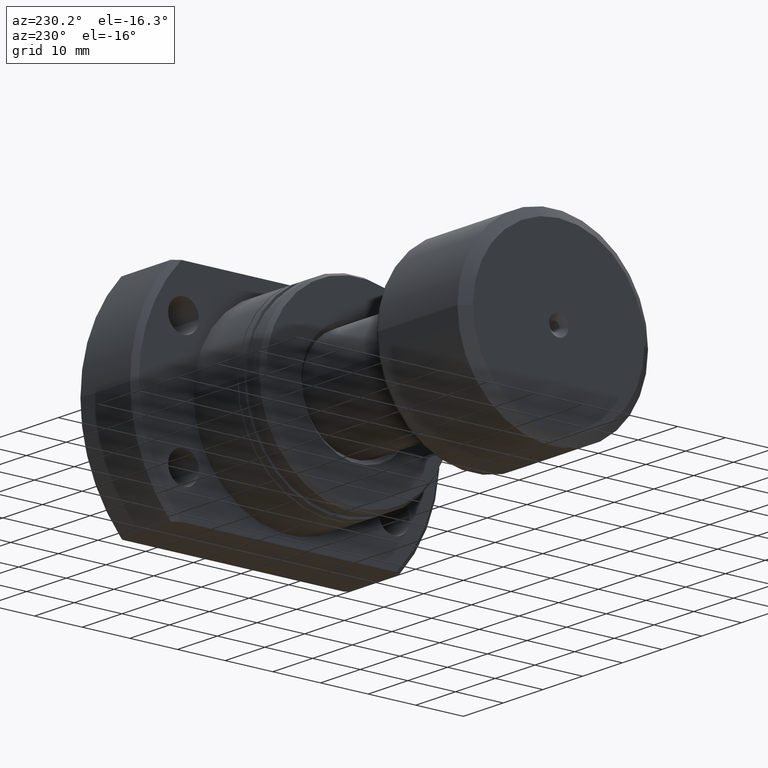
[diagram: clean part render]
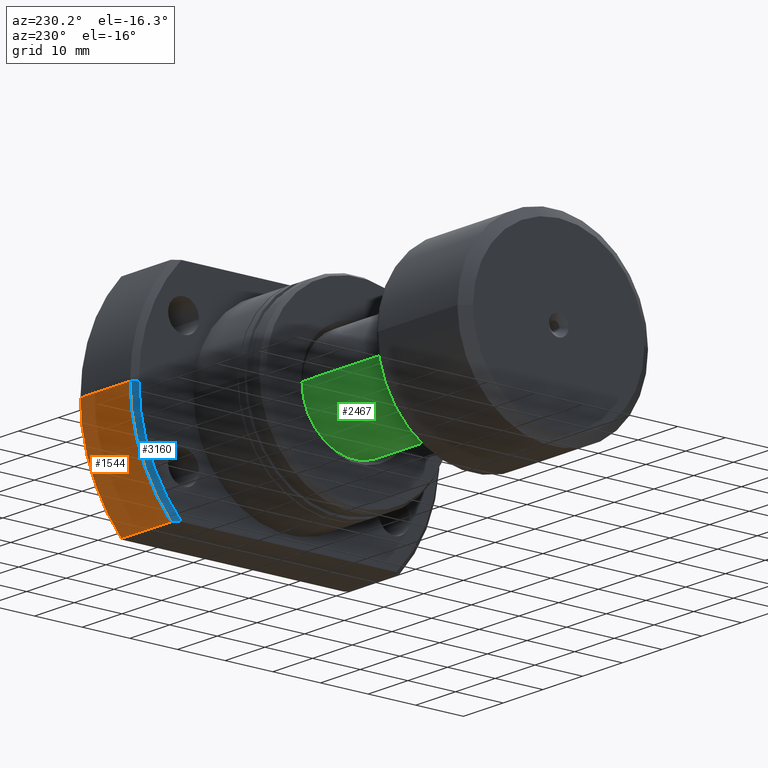
[diagram: same view with three faces highlighted in distinct colors, each labeled with its STEP entity id]
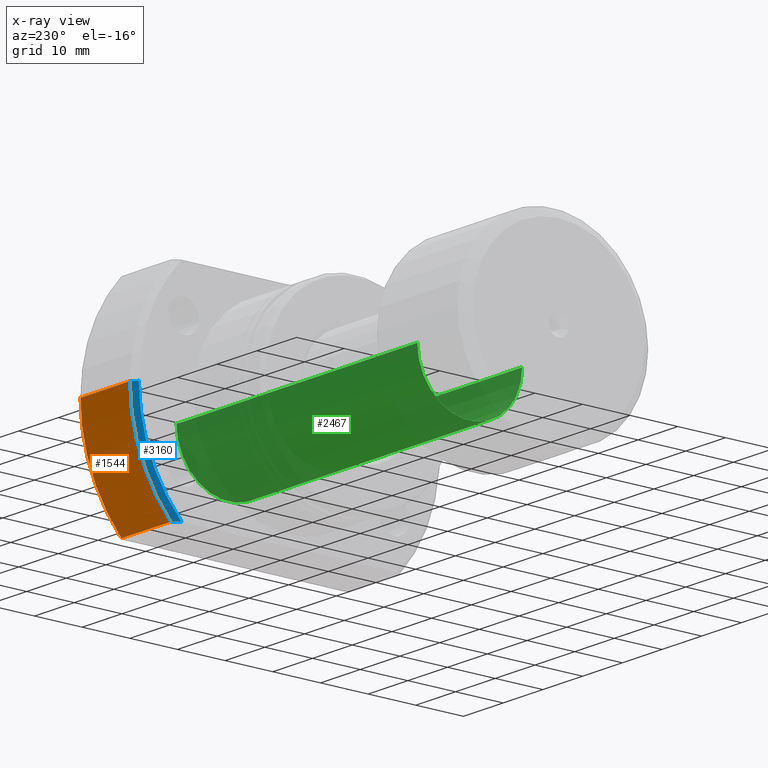
[diagram: x-ray of the same camera — body ghosted, the three highlighted faces saturated]
A machine part, auxiliary view with three faces highlighted in distinct colors.
The next image is the same camera in x-ray (body ghosted, the three faces saturated) — at least one of them is partly hidden behind the body in this view.
Their STEP definitions:

[orange] entity #1544 — the highlighted cylindrical surface (partial cylindrical patch) has radius 32.5 mm, axis along (1, 0, 0).
#307 = ORIENTED_EDGE ( 'NONE', *, *, #346, .T. ) ;
#346 = EDGE_CURVE ( 'NONE', #1538, #1849, #2938, .T. ) ;
#366 = ORIENTED_EDGE ( 'NONE', *, *, #1125, .T. ) ;
#420 = VERTEX_POINT ( 'NONE', #670 ) ;
#466 = CARTESIAN_POINT ( 'NONE',  ( 31.00000000000008171, 32.49999999999990763, 0.000000000000000000 ) ) ;
#501 = DIRECTION ( 'NONE',  ( 1.000000000000000000, -2.886466111666351885E-14, -0.000000000000000000 ) ) ;
#508 = DIRECTION ( 'NONE',  ( 1.000000000000000000, 2.721437331438560389E-17, -0.000000000000000000 ) ) ;
#509 = CARTESIAN_POINT ( 'NONE',  ( 18.49999999999998934, 23.92174742781163133, -21.99999999999998934 ) ) ;
#565 = DIRECTION ( 'NONE',  ( 0.000000000000000000, 1.000000000000000000, 0.000000000000000000 ) ) ;
#664 = EDGE_LOOP ( 'NONE', ( #366, #307, #2028, #3062 ) ) ;
#670 = CARTESIAN_POINT ( 'NONE',  ( 31.00000000000007461, 23.92174742781126895, -21.99999999999998934 ) ) ;
#696 = VECTOR ( 'NONE', #508, 1000.000000000000000 ) ;
#705 = CIRCLE ( 'NONE', #1426, 32.49999999999990763 ) ;
#781 = CYLINDRICAL_SURFACE ( 'NONE', #1046, 32.49999999999990763 ) ;
#956 = DIRECTION ( 'NONE',  ( 0.000000000000000000, 1.000000000000000000, 0.000000000000000000 ) ) ;
#1038 = VERTEX_POINT ( 'NONE', #509 ) ;
#1046 = AXIS2_PLACEMENT_3D ( 'NONE', #2298, #2271, #565 ) ;
#1125 = EDGE_CURVE ( 'NONE', #1038, #1538, #2928, .T. ) ;
#1212 = CARTESIAN_POINT ( 'NONE',  ( 31.50000000000000000, 32.49999999999990763, 0.000000000000000000 ) ) ;
#1255 = CARTESIAN_POINT ( 'NONE',  ( 18.49999999999998934, 5.034659063161333869E-16, 0.000000000000000000 ) ) ;
#1272 = DIRECTION ( 'NONE',  ( 0.000000000000000000, 1.000000000000000000, 0.000000000000000000 ) ) ;
#1319 = EDGE_CURVE ( 'NONE', #1038, #420, #1682, .T. ) ;
#1426 = AXIS2_PLACEMENT_3D ( 'NONE', #1895, #1443, #956 ) ;
#1443 = DIRECTION ( 'NONE',  ( 1.000000000000000000, 2.721437331438560389E-17, -0.000000000000000000 ) ) ;
#1538 = VERTEX_POINT ( 'NONE', #1790 ) ;
#1544 = ADVANCED_FACE ( 'NONE', ( #2493 ), #781, .T. ) ;
#1574 = AXIS2_PLACEMENT_3D ( 'NONE', #1255, #2262, #1272 ) ;
#1682 = LINE ( 'NONE', #2660, #2300 ) ;
#1790 = CARTESIAN_POINT ( 'NONE',  ( 18.49999999999998934, 32.49999999999990763, 0.000000000000000000 ) ) ;
#1849 = VERTEX_POINT ( 'NONE', #466 ) ;
#1895 = CARTESIAN_POINT ( 'NONE',  ( 31.00000000000008171, 8.436455727459560039E-16, 0.000000000000000000 ) ) ;
#2028 = ORIENTED_EDGE ( 'NONE', *, *, #2916, .F. ) ;
#2262 = DIRECTION ( 'NONE',  ( 1.000000000000000000, 2.721437331438560389E-17, -0.000000000000000000 ) ) ;
#2271 = DIRECTION ( 'NONE',  ( 1.000000000000000000, 2.721437331438560389E-17, -0.000000000000000000 ) ) ;
#2298 = CARTESIAN_POINT ( 'NONE',  ( 31.50000000000000000, 8.572527594031465301E-16, 0.000000000000000000 ) ) ;
#2300 = VECTOR ( 'NONE', #501, 1000.000000000000000 ) ;
#2493 = FACE_OUTER_BOUND ( 'NONE', #664, .T. ) ;
#2660 = CARTESIAN_POINT ( 'NONE',  ( -2.498001805406602216E-13, 23.92174742781216423, -21.99999999999998934 ) ) ;
#2916 = EDGE_CURVE ( 'NONE', #420, #1849, #705, .T. ) ;
#2928 = CIRCLE ( 'NONE', #1574, 32.49999999999990763 ) ;
#2938 = LINE ( 'NONE', #1212, #696 ) ;
#3062 = ORIENTED_EDGE ( 'NONE', *, *, #1319, .F. ) ;

[blue] entity #3160 — the highlighted conical surface has half-angle 45 deg.
#123 = DIRECTION ( 'NONE',  ( 0.000000000000000000, 1.000000000000000000, 0.000000000000000000 ) ) ;
#127 = LINE ( 'NONE', #1613, #2095 ) ;
#137 = ORIENTED_EDGE ( 'NONE', *, *, #3213, .T. ) ;
#359 = EDGE_LOOP ( 'NONE', ( #137, #2993, #1240, #2164 ) ) ;
#377 = DIRECTION ( 'NONE',  ( 1.000000000000000000, 2.721437331438560389E-17, -0.000000000000000000 ) ) ;
#509 = CARTESIAN_POINT ( 'NONE',  ( 18.49999999999998934, 23.92174742781163133, -21.99999999999998934 ) ) ;
#541 = CARTESIAN_POINT ( 'NONE',  ( 17.50000000000000355, 31.49999999999993250, 0.000000000000000000 ) ) ;
#627 = CARTESIAN_POINT ( 'NONE',  ( 18.49999999999998934, 23.92174742781163133, -21.99999999999998934 ) ) ;
#659 = CARTESIAN_POINT ( 'NONE',  ( 17.50000000000000355, 4.762515330017481928E-16, 0.000000000000000000 ) ) ;
#754 = AXIS2_PLACEMENT_3D ( 'NONE', #1415, #377, #123 ) ;
#855 = CARTESIAN_POINT ( 'NONE',  ( 18.16368991444090497, 23.46483775540317041, -22.00000000000000355 ) ) ;
#874 = B_SPLINE_CURVE_WITH_KNOTS ( 'NONE', 3,
 ( #627, #855, #1890, #1131 ),
 .UNSPECIFIED., .F., .F.,
 ( 4, 4 ),
 ( 0.03779752499755586331, 0.03950166028446448763 ),
 .UNSPECIFIED. ) ;
#1038 = VERTEX_POINT ( 'NONE', #509 ) ;
#1125 = EDGE_CURVE ( 'NONE', #1038, #1538, #2928, .T. ) ;
#1131 = CARTESIAN_POINT ( 'NONE',  ( 17.50000000000000355, 22.54440063519089676, -22.00000000000000355 ) ) ;
#1137 = VERTEX_POINT ( 'NONE', #2227 ) ;
#1240 = ORIENTED_EDGE ( 'NONE', *, *, #1125, .F. ) ;
#1248 = EDGE_CURVE ( 'NONE', #1038, #1137, #874, .T. ) ;
#1255 = CARTESIAN_POINT ( 'NONE',  ( 18.49999999999998934, 5.034659063161333869E-16, 0.000000000000000000 ) ) ;
#1272 = DIRECTION ( 'NONE',  ( 0.000000000000000000, 1.000000000000000000, 0.000000000000000000 ) ) ;
#1274 = EDGE_CURVE ( 'NONE', #2048, #1538, #127, .T. ) ;
#1395 = DIRECTION ( 'NONE',  ( 0.000000000000000000, 1.000000000000000000, 0.000000000000000000 ) ) ;
#1415 = CARTESIAN_POINT ( 'NONE',  ( 17.50000000000000355, 4.762515330017481928E-16, 0.000000000000000000 ) ) ;
#1538 = VERTEX_POINT ( 'NONE', #1790 ) ;
#1574 = AXIS2_PLACEMENT_3D ( 'NONE', #1255, #2262, #1272 ) ;
#1613 = CARTESIAN_POINT ( 'NONE',  ( 17.50000000000000355, 31.49999999999993250, 0.000000000000000000 ) ) ;
#1643 = DIRECTION ( 'NONE',  ( 1.000000000000000000, 2.721437331438560389E-17, -0.000000000000000000 ) ) ;
#1731 = CONICAL_SURFACE ( 'NONE', #2520, 31.49999999999993250, 0.7853981633974466137 ) ;
#1790 = CARTESIAN_POINT ( 'NONE',  ( 18.49999999999998934, 32.49999999999990763, 0.000000000000000000 ) ) ;
#1890 = CARTESIAN_POINT ( 'NONE',  ( 17.83023180395318263, 23.00581462409452982, -22.00000000000000355 ) ) ;
#1891 = CIRCLE ( 'NONE', #754, 31.49999999999993250 ) ;
#2048 = VERTEX_POINT ( 'NONE', #541 ) ;
#2095 = VECTOR ( 'NONE', #2835, 1000.000000000000000 ) ;
#2164 = ORIENTED_EDGE ( 'NONE', *, *, #1248, .T. ) ;
#2227 = CARTESIAN_POINT ( 'NONE',  ( 17.50000000000000355, 22.54440063519089676, -22.00000000000000355 ) ) ;
#2262 = DIRECTION ( 'NONE',  ( 1.000000000000000000, 2.721437331438560389E-17, -0.000000000000000000 ) ) ;
#2403 = FACE_OUTER_BOUND ( 'NONE', #359, .T. ) ;
#2520 = AXIS2_PLACEMENT_3D ( 'NONE', #659, #1643, #1395 ) ;
#2835 = DIRECTION ( 'NONE',  ( 0.7071067811865487940, 0.7071067811865463515, 0.000000000000000000 ) ) ;
#2928 = CIRCLE ( 'NONE', #1574, 32.49999999999990763 ) ;
#2993 = ORIENTED_EDGE ( 'NONE', *, *, #1274, .T. ) ;
#3160 = ADVANCED_FACE ( 'NONE', ( #2403 ), #1731, .T. ) ;
#3213 = EDGE_CURVE ( 'NONE', #1137, #2048, #1891, .T. ) ;

[green] entity #2467 — the highlighted cylindrical surface (partial cylindrical patch) has radius 11 mm, axis along (-1, -0, -0).
#17 = DIRECTION ( 'NONE',  ( -1.000000000000000000, -1.069542322069065801E-17, -0.000000000000000000 ) ) ;
#18 = VECTOR ( 'NONE', #2170, 1000.000000000000000 ) ;
#42 = CARTESIAN_POINT ( 'NONE',  ( 83.06675751232377536, -11.00000000000018829, 0.000000000000000000 ) ) ;
#168 = EDGE_CURVE ( 'NONE', #1580, #992, #3205, .T. ) ;
#195 = CARTESIAN_POINT ( 'NONE',  ( 1.176496554275982688E-16, -11.00000000000009415, 0.000000000000000000 ) ) ;
#226 = AXIS2_PLACEMENT_3D ( 'NONE', #1922, #691, #1663 ) ;
#278 = CARTESIAN_POINT ( 'NONE',  ( -1.176496554275982688E-16, 11.00000000000009415, 1.347111479062100238E-15 ) ) ;
#362 = CARTESIAN_POINT ( 'NONE',  ( 83.06675751232377536, 8.884341271647877269E-16, 0.000000000000000000 ) ) ;
#553 = EDGE_CURVE ( 'NONE', #824, #1196, #979, .T. ) ;
#570 = EDGE_LOOP ( 'NONE', ( #2968, #1609, #2399, #1284 ) ) ;
#576 = CARTESIAN_POINT ( 'NONE',  ( 0.000000000000000000, 0.000000000000000000, 0.000000000000000000 ) ) ;
#691 = DIRECTION ( 'NONE',  ( -1.000000000000000000, -1.069542322069065801E-17, -0.000000000000000000 ) ) ;
#814 = CARTESIAN_POINT ( 'NONE',  ( 83.06675751232377536, 11.00000000000019185, 1.347111479062111873E-15 ) ) ;
#824 = VERTEX_POINT ( 'NONE', #814 ) ;
#886 = CARTESIAN_POINT ( 'NONE',  ( 22.39999999999999858, 11.00000000000000000, 1.347111479062094124E-15 ) ) ;
#979 = LINE ( 'NONE', #278, #2820 ) ;
#992 = VERTEX_POINT ( 'NONE', #1618 ) ;
#999 = CIRCLE ( 'NONE', #226, 11.00000000000000000 ) ;
#1196 = VERTEX_POINT ( 'NONE', #886 ) ;
#1284 = ORIENTED_EDGE ( 'NONE', *, *, #1348, .F. ) ;
#1343 = DIRECTION ( 'NONE',  ( -1.000000000000000000, -1.069542322069065801E-17, -0.000000000000000000 ) ) ;
#1348 = EDGE_CURVE ( 'NONE', #1196, #992, #999, .T. ) ;
#1471 = AXIS2_PLACEMENT_3D ( 'NONE', #576, #2607, #1804 ) ;
#1580 = VERTEX_POINT ( 'NONE', #42 ) ;
#1609 = ORIENTED_EDGE ( 'NONE', *, *, #3224, .T. ) ;
#1611 = FACE_OUTER_BOUND ( 'NONE', #570, .T. ) ;
#1618 = CARTESIAN_POINT ( 'NONE',  ( 22.39999999999999858, -11.00000000000000000, 0.000000000000000000 ) ) ;
#1663 = DIRECTION ( 'NONE',  ( 0.000000000000000000, -1.000000000000000000, 0.000000000000000000 ) ) ;
#1804 = DIRECTION ( 'NONE',  ( 1.069542322069065955E-17, -1.000000000000000000, 0.000000000000000000 ) ) ;
#1922 = CARTESIAN_POINT ( 'NONE',  ( 22.39999999999999858, 2.395774801434707739E-16, 0.000000000000000000 ) ) ;
#2170 = DIRECTION ( 'NONE',  ( -1.000000000000000000, -1.069542322069065801E-17, -0.000000000000000000 ) ) ;
#2399 = ORIENTED_EDGE ( 'NONE', *, *, #168, .T. ) ;
#2467 = ADVANCED_FACE ( 'NONE', ( #1611 ), #2594, .T. ) ;
#2594 = CYLINDRICAL_SURFACE ( 'NONE', #1471, 11.00000000000009415 ) ;
#2607 = DIRECTION ( 'NONE',  ( -1.000000000000000000, -1.069542322069065801E-17, -0.000000000000000000 ) ) ;
#2820 = VECTOR ( 'NONE', #17, 1000.000000000000000 ) ;
#2968 = ORIENTED_EDGE ( 'NONE', *, *, #553, .F. ) ;
#3095 = CIRCLE ( 'NONE', #3212, 11.00000000000019007 ) ;
#3153 = DIRECTION ( 'NONE',  ( 0.000000000000000000, -1.000000000000000000, 0.000000000000000000 ) ) ;
#3205 = LINE ( 'NONE', #195, #18 ) ;
#3212 = AXIS2_PLACEMENT_3D ( 'NONE', #362, #1343, #3153 ) ;
#3224 = EDGE_CURVE ( 'NONE', #824, #1580, #3095, .T. ) ;